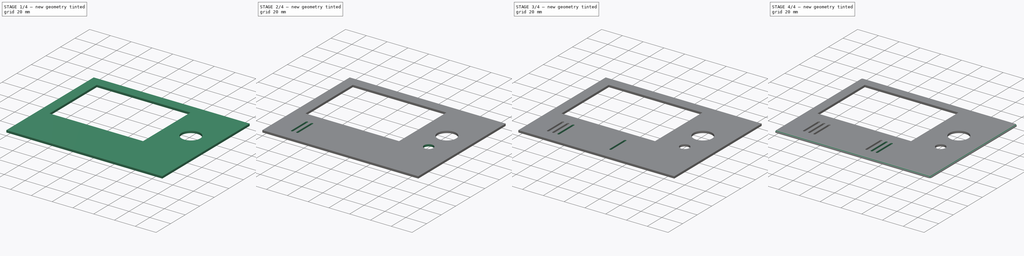
[diagram: build sequence overview — one tinted view per stage of 4, left to right]
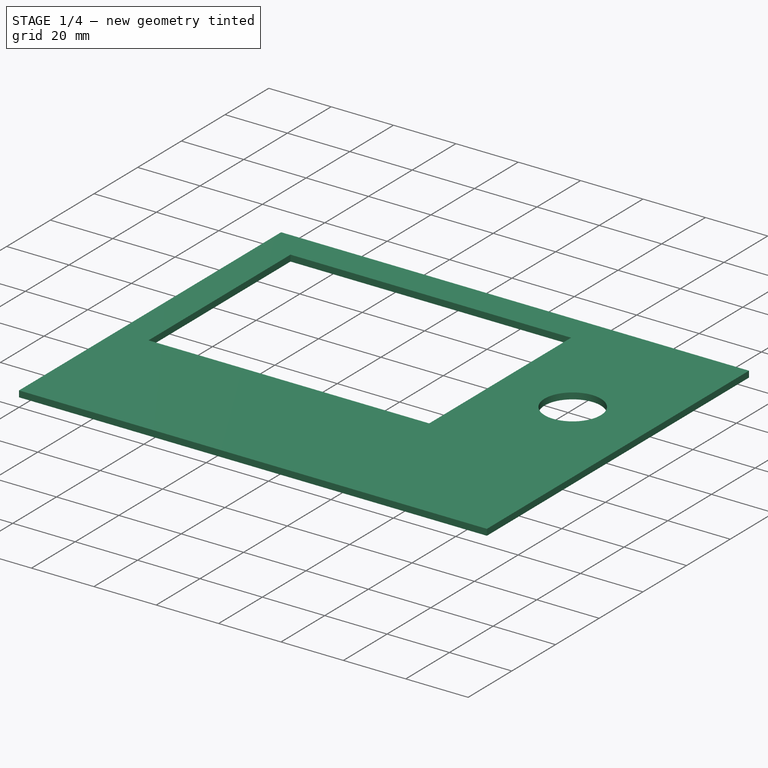
[diagram: stage 1 of 4 — iso view after this stage's code; geometry added in this stage tinted green]
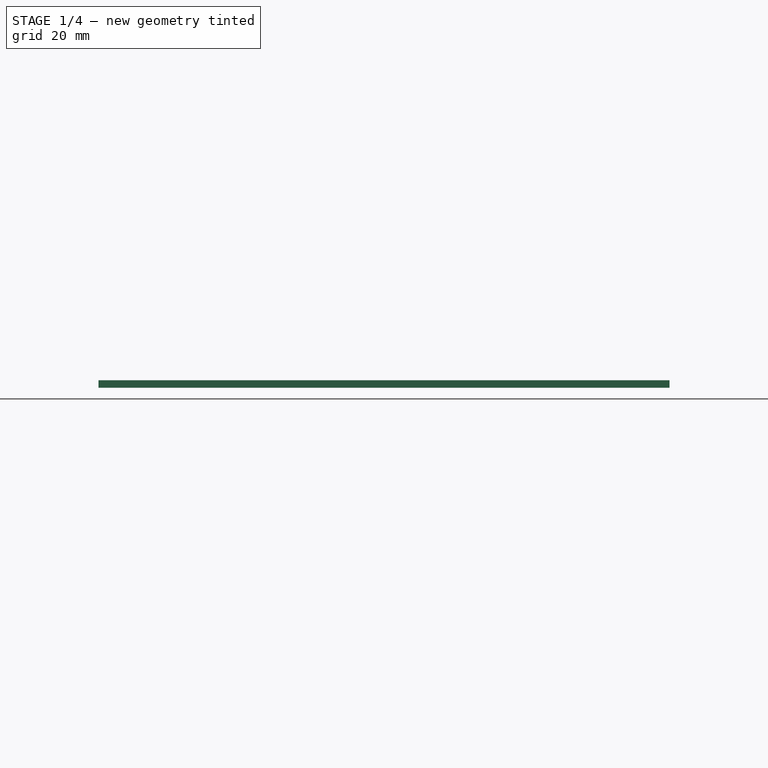
[diagram: stage 1 of 4 — front view after this stage's code; geometry added in this stage tinted green]
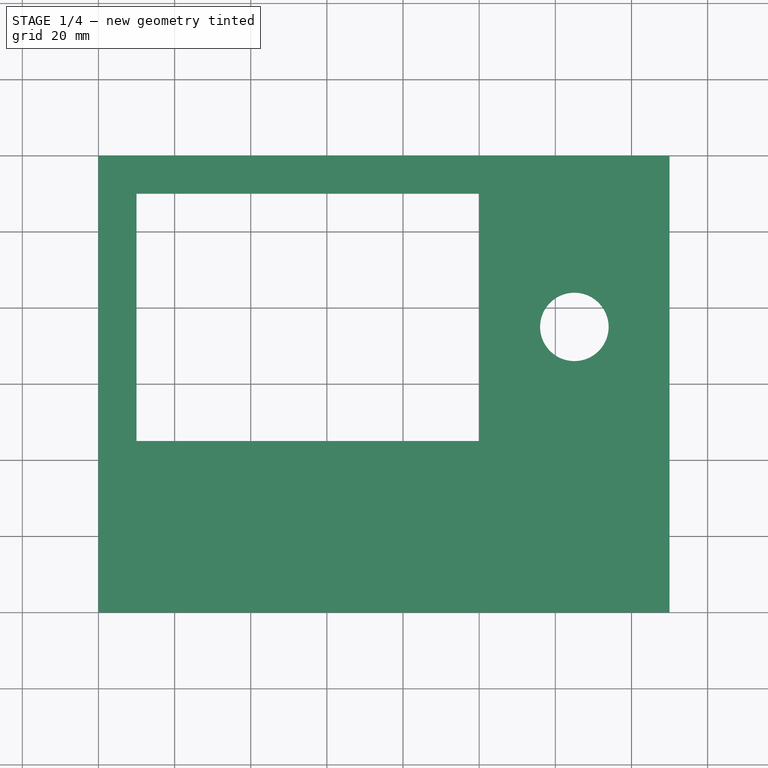
[diagram: stage 1 of 4 — top view after this stage's code; geometry added in this stage tinted green]
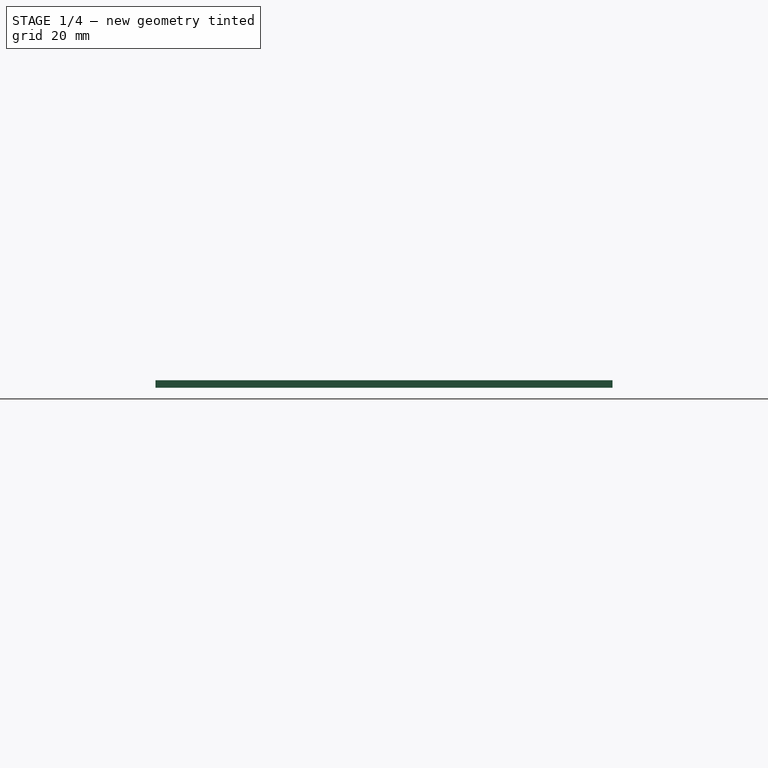
[diagram: stage 1 of 4 — right view after this stage's code; geometry added in this stage tinted green]
FCSTD DOCUMENT  (FreeCAD 1.0R38806 (Git))
Label: Front Panel
License: All rights reserved
LicenseURL: https://en.wikipedia.org/wiki/All_rights_reserved
objects: Sketcher::SketchObject×11, PartDesign::Pocket×9, PartDesign::Pad×1, PartDesign::Fillet×1, PartDesign::Body×1
note: 56 computed .brp shape members not serialized (recipe doc carries the construction recipe); baked Part::Feature solids carry a one-line shape summary decoded from their .brp

FEATURE [Sketcher::SketchObject] Sketch  label="Base"
  ArcFitTolerance = 0
  FullyConstrained = true
  MakeInternals = false
  MapMode = 5
  sketch-geometry (4):
    g0: LineSegment StartX=0 StartY=0 StartZ=0 EndX=150 EndY=0 EndZ=0
    g1: LineSegment StartX=150 StartY=0 StartZ=0 EndX=150 EndY=120 EndZ=0
    g2: LineSegment StartX=150 StartY=120 StartZ=0 EndX=0 EndY=120 EndZ=0
    g3: LineSegment StartX=0 StartY=120 StartZ=0 EndX=0 EndY=0 EndZ=0
  constraints (11):
    c: Coincident(g0,g1)
    c: Coincident(g1,g2)
    c: Coincident(g2,g3)
    c: Coincident(g3,g0)
    c: Horizontal(g0)
    c: Horizontal(g2)
    c: Vertical(g1)
    c: Vertical(g3)
    c: Coincident(g0,g-1)
    c: DistanceX(g2,g2) = 150  'width'
    c: DistanceY(g3,g3) = 120  'height'
FEATURE [Sketcher::SketchObject] Sketch001  label="Screen"
  ArcFitTolerance = 0
  ExternalGeometry = -> [Sketch]
  FullyConstrained = true
  MakeInternals = false
  MapMode = 5
  sketch-geometry (4):
    g0: LineSegment StartX=10 StartY=110 StartZ=0 EndX=10 EndY=45 EndZ=0
    g1: LineSegment StartX=10 StartY=45 StartZ=0 EndX=100 EndY=45 EndZ=0
    g2: LineSegment StartX=100 StartY=45 StartZ=0 EndX=100 EndY=110 EndZ=0
    g3: LineSegment StartX=100 StartY=110 StartZ=0 EndX=10 EndY=110 EndZ=0
  constraints (12):
    c: Coincident(g0,g1)
    c: Coincident(g1,g2)
    c: Coincident(g2,g3)
    c: Coincident(g3,g0)
    c: Vertical(g0)
    c: Vertical(g2)
    c: Horizontal(g1)
    c: Horizontal(g3)
    c: DistanceX(g3,g3) = 90  'screen_width'
    c: DistanceY(g2,g2) = 65  'screen_height'
    c: DistanceX(g-3,g0) = 10  'border_width'
    c: DistanceY(g0,g-3) = 10  'border_height'
FEATURE [Sketcher::SketchObject] Sketch002  label="BigButton"
  ArcFitTolerance = 0
  FullyConstrained = true
  MakeInternals = false
  MapMode = 5
  sketch-geometry (1):
    g0: Circle CenterX=125 CenterY=75 CenterZ=0 NormalX=0 NormalY=0 NormalZ=1 AngleXU=0 Radius=9
  constraints (3):
    c: Diameter(g0) = 18  'big_button'
    c: DistanceX(g-1,g0) = 125  'button_x'
    c: DistanceY(g-1,g0) = 75  'button_y'
FEATURE [Sketcher::SketchObject] Sketch003  label="SmallButton"
  ArcFitTolerance = 0
  FullyConstrained = true
  MakeInternals = false
  MapMode = 5
  expr: Constraints[1] = <<BigButton>>.Constraints.button_x
  sketch-geometry (1):
    g0: Circle CenterX=125 CenterY=50 CenterZ=0 NormalX=0 NormalY=0 NormalZ=1 AngleXU=0 Radius=4.5
  constraints (3):
    c: Diameter(g0) = 9  'small_button_diameter'
    c: DistanceX(g-1,g0) = 125
    c: DistanceY(g-1,g0) = 50  'small_button_y'
FEATURE [Sketcher::SketchObject] Sketch004  label="Grill1"
  ArcFitTolerance = 0
  FullyConstrained = true
  MakeInternals = false
  MapMode = 5
  sketch-geometry (4):
    g0: ArcOfCircle CenterX=20 CenterY=32.5 CenterZ=0 NormalX=0 NormalY=0 NormalZ=1 AngleXU=0 Radius=1 StartAngle=-1.8e-15 EndAngle=3.14159
    g1: ArcOfCircle CenterX=20 CenterY=12.5 CenterZ=0 NormalX=0 NormalY=0 NormalZ=1 AngleXU=0 Radius=1 StartAngle=3.14159 EndAngle=6.28319
    g2: LineSegment StartX=21 StartY=32.5 StartZ=0 EndX=21 EndY=12.5 EndZ=0
    g3: LineSegment StartX=19 StartY=32.5 StartZ=0 EndX=19 EndY=12.5 EndZ=0
  constraints (10):
    c: Tangent(g0,g2) = 1.5708
    c: Tangent(g0,g3) = -1.5708
    c: Tangent(g1,g2) = 1.5708
    c: Tangent(g1,g3) = -1.5708
    c: Equal(g0,g1)
    c: Vertical(g3)
    c: DistanceX(g0,g0) = 2  'grill_width'
    c: DistanceY(g1,g0) = 20  'grill_height'
    c: DistanceX(g-1,g1) = 20  'grill_x'
    c: Distance(g1,g-1) = 12.5  'grill_y'
FEATURE [Sketcher::SketchObject] Sketch006  label="Grill002"
  ArcFitTolerance = 0
  FullyConstrained = true
  MakeInternals = false
  MapMode = 5
  expr: .Constraints.grill_height = <<Grill1>>.Constraints.grill_height
  expr: .Constraints.grill_width = <<Grill1>>.Constraints.grill_width
  expr: .Constraints.grill_x = <<Grill1>>.Constraints.grill_x + <<Ruler>>.Constraints.grill_spacing
  expr: .Constraints.grill_y = <<Grill1>>.Constraints.grill_y
  sketch-geometry (4):
    g0: ArcOfCircle CenterX=25 CenterY=32.5 CenterZ=0 NormalX=0 NormalY=0 NormalZ=1 AngleXU=0 Radius=1 StartAngle=3.6e-15 EndAngle=3.14159
    g1: ArcOfCircle CenterX=25 CenterY=12.5 CenterZ=0 NormalX=0 NormalY=0 NormalZ=1 AngleXU=0 Radius=1 StartAngle=3.14159 EndAngle=6.28319
    g2: LineSegment StartX=26 StartY=32.5 StartZ=0 EndX=26 EndY=12.5 EndZ=0
    g3: LineSegment StartX=24 StartY=32.5 StartZ=0 EndX=24 EndY=12.5 EndZ=0
  constraints (10):
    c: Tangent(g0,g2) = 1.5708
    c: Tangent(g0,g3) = -1.5708
    c: Tangent(g1,g2) = 1.5708
    c: Tangent(g1,g3) = -1.5708
    c: Equal(g0,g1)
    c: Vertical(g3)
    c: DistanceX(g0,g0) = 2  'grill_width'
    c: DistanceY(g1,g0) = 20  'grill_height'
    c: DistanceX(g-1,g1) = 25  'grill_x'
    c: Distance(g1,g-1) = 12.5  'grill_y'
FEATURE [Sketcher::SketchObject] Sketch007  label="Ruler"
  ArcFitTolerance = 0
  FullyConstrained = true
  MakeInternals = false
  MapMode = 5
  sketch-geometry (3):
    g0: LineSegment StartX=-30 StartY=15 StartZ=0 EndX=-30 EndY=10 EndZ=0
    g1: LineSegment StartX=-60 StartY=0 StartZ=0 EndX=-60 EndY=60 EndZ=0
    g2: LineSegment StartX=-90 StartY=0 StartZ=0 EndX=-90 EndY=2 EndZ=0
  constraints (12):
    c: Vertical(g0)
    c: DistanceY(g0,g0) = 5  'grill_spacing'
    c: DistanceX(g0,g-1) = 30
    c: DistanceY(g0) = 10
    c: PointOnObject(g1,g-1)
    c: Vertical(g1)
    c: DistanceX(g1,g-1) = 60
    c: DistanceY(g1,g1) = 60  'big_grill_gap'
    c: PointOnObject(g2,g-1)
    c: Vertical(g2)
    c: DistanceX(g2,g-1) = 90
    c: DistanceY(g2,g2) = 2  'thickness'
FEATURE [Sketcher::SketchObject] Sketch008  label="Grill003"
  ArcFitTolerance = 0
  FullyConstrained = true
  MakeInternals = false
  MapMode = 5
  expr: .Constraints.grill_height = <<Grill1>>.Constraints.grill_height
  expr: .Constraints.grill_width = <<Grill1>>.Constraints.grill_width
  expr: .Constraints.grill_x = <<Grill1>>.Constraints.grill_x + 2 * <<Ruler>>.Constraints.grill_spacing
  expr: .Constraints.grill_y = <<Grill1>>.Constraints.grill_y
  sketch-geometry (4):
    g0: ArcOfCircle CenterX=30 CenterY=32.5 CenterZ=0 NormalX=0 NormalY=0 NormalZ=1 AngleXU=0 Radius=1 StartAngle=-2.7e-15 EndAngle=3.14159
    g1: ArcOfCircle CenterX=30 CenterY=12.5 CenterZ=0 NormalX=0 NormalY=0 NormalZ=1 AngleXU=0 Radius=1 StartAngle=3.14159 EndAngle=6.28319
    g2: LineSegment StartX=31 StartY=32.5 StartZ=0 EndX=31 EndY=12.5 EndZ=0
    g3: LineSegment StartX=29 StartY=32.5 StartZ=0 EndX=29 EndY=12.5 EndZ=0
  constraints (10):
    c: Tangent(g0,g2) = 1.5708
    c: Tangent(g0,g3) = -1.5708
    c: Tangent(g1,g2) = 1.5708
    c: Tangent(g1,g3) = -1.5708
    c: Equal(g0,g1)
    c: Vertical(g3)
    c: DistanceX(g0,g0) = 2  'grill_width'
    c: DistanceY(g1,g0) = 20  'grill_height'
    c: DistanceX(g-1,g1) = 30  'grill_x'
    c: Distance(g1,g-1) = 12.5  'grill_y'
FEATURE [Sketcher::SketchObject] Sketch009  label="Grill004"
  ArcFitTolerance = 0
  FullyConstrained = true
  MakeInternals = false
  MapMode = 5
  expr: .Constraints.grill_height = <<Grill1>>.Constraints.grill_height
  expr: .Constraints.grill_width = <<Grill1>>.Constraints.grill_width
  expr: .Constraints.grill_x = <<Grill1>>.Constraints.grill_x + <<Ruler>>.Constraints.big_grill_gap
  expr: .Constraints.grill_y = <<Grill1>>.Constraints.grill_y
  sketch-geometry (4):
    g0: ArcOfCircle CenterX=80 CenterY=32.5 CenterZ=0 NormalX=0 NormalY=0 NormalZ=1 AngleXU=0 Radius=1 StartAngle=1.5e-15 EndAngle=3.14159
    g1: ArcOfCircle CenterX=80 CenterY=12.5 CenterZ=0 NormalX=0 NormalY=0 NormalZ=1 AngleXU=0 Radius=1 StartAngle=3.14159 EndAngle=6.28319
    g2: LineSegment StartX=81 StartY=32.5 StartZ=0 EndX=81 EndY=12.5 EndZ=0
    g3: LineSegment StartX=79 StartY=32.5 StartZ=0 EndX=79 EndY=12.5 EndZ=0
  constraints (10):
    c: Tangent(g0,g2) = 1.5708
    c: Tangent(g0,g3) = -1.5708
    c: Tangent(g1,g2) = 1.5708
    c: Tangent(g1,g3) = -1.5708
    c: Equal(g0,g1)
    c: Vertical(g3)
    c: DistanceX(g0,g0) = 2  'grill_width'
    c: DistanceY(g1,g0) = 20  'grill_height'
    c: DistanceX(g-1,g1) = 80  'grill_x'
    c: Distance(g1,g-1) = 12.5  'grill_y'
FEATURE [Sketcher::SketchObject] Sketch010  label="Grill005"
  ArcFitTolerance = 0
  FullyConstrained = true
  MakeInternals = false
  MapMode = 5
  expr: .Constraints.grill_height = <<Grill1>>.Constraints.grill_height
  expr: .Constraints.grill_width = <<Grill1>>.Constraints.grill_width
  expr: .Constraints.grill_x = <<Grill1>>.Constraints.grill_x + <<Ruler>>.Constraints.big_grill_gap + <<Ruler>>.Constraints.grill_spacing
  expr: .Constraints.grill_y = <<Grill1>>.Constraints.grill_y
  sketch-geometry (4):
    g0: ArcOfCircle CenterX=85 CenterY=32.5 CenterZ=0 NormalX=0 NormalY=0 NormalZ=1 AngleXU=0 Radius=1 StartAngle=2.9e-15 EndAngle=3.14159
    g1: ArcOfCircle CenterX=85 CenterY=12.5 CenterZ=0 NormalX=0 NormalY=0 NormalZ=1 AngleXU=0 Radius=1 StartAngle=3.14159 EndAngle=6.28319
    g2: LineSegment StartX=86 StartY=32.5 StartZ=0 EndX=86 EndY=12.5 EndZ=0
    g3: LineSegment StartX=84 StartY=32.5 StartZ=0 EndX=84 EndY=12.5 EndZ=0
  constraints (10):
    c: Tangent(g0,g2) = 1.5708
    c: Tangent(g0,g3) = -1.5708
    c: Tangent(g1,g2) = 1.5708
    c: Tangent(g1,g3) = -1.5708
    c: Equal(g0,g1)
    c: Vertical(g3)
    c: DistanceX(g0,g0) = 2  'grill_width'
    c: DistanceY(g1,g0) = 20  'grill_height'
    c: DistanceX(g-1,g1) = 85  'grill_x'
    c: Distance(g1,g-1) = 12.5  'grill_y'
FEATURE [Sketcher::SketchObject] Sketch011  label="Grill006"
  ArcFitTolerance = 0
  FullyConstrained = true
  MakeInternals = false
  MapMode = 5
  expr: .Constraints.grill_height = <<Grill1>>.Constraints.grill_height
  expr: .Constraints.grill_width = <<Grill1>>.Constraints.grill_width
  expr: .Constraints.grill_x = <<Grill1>>.Constraints.grill_x + <<Ruler>>.Constraints.big_grill_gap + 2 * <<Ruler>>.Constraints.grill_spacing
  expr: .Constraints.grill_y = <<Grill1>>.Constraints.grill_y
  sketch-geometry (4):
    g0: ArcOfCircle CenterX=90 CenterY=32.5 CenterZ=0 NormalX=0 NormalY=0 NormalZ=1 AngleXU=0 Radius=1 StartAngle=-3.6e-15 EndAngle=3.14159
    g1: ArcOfCircle CenterX=90 CenterY=12.5 CenterZ=0 NormalX=0 NormalY=0 NormalZ=1 AngleXU=0 Radius=1 StartAngle=3.14159 EndAngle=6.28319
    g2: LineSegment StartX=91 StartY=32.5 StartZ=0 EndX=91 EndY=12.5 EndZ=0
    g3: LineSegment StartX=89 StartY=32.5 StartZ=0 EndX=89 EndY=12.5 EndZ=0
  constraints (10):
    c: Tangent(g0,g2) = 1.5708
    c: Tangent(g0,g3) = -1.5708
    c: Tangent(g1,g2) = 1.5708
    c: Tangent(g1,g3) = -1.5708
    c: Equal(g0,g1)
    c: Vertical(g3)
    c: DistanceX(g0,g0) = 2  'grill_width'
    c: DistanceY(g1,g0) = 20  'grill_height'
    c: DistanceX(g-1,g1) = 90  'grill_x'
    c: Distance(g1,g-1) = 12.5  'grill_y'
FEATURE [PartDesign::Pad] Pad
  Direction = (0,0,1)
  Length = 2
  Length2 = 10
  Profile = -> Sketch
  ReferenceAxis = -> Sketch [N_Axis]
  Refine = true
  Suppressed = false
  Type = 0
  expr: Length = <<Ruler>>.Constraints.thickness
FEATURE [PartDesign::Pocket] Pocket
  BaseFeature = -> Pad
  Direction = (0,0,-1)
  Length = 2
  Length2 = 5
  Profile = -> Sketch001
  ReferenceAxis = -> Sketch001 [N_Axis]
  Refine = true
  Reversed = true
  Suppressed = false
  Type = 0
  expr: Length = <<Ruler>>.Constraints.thickness
FEATURE [PartDesign::Pocket] Pocket001
  BaseFeature = -> Pocket
  Direction = (0,0,-1)
  Length = 2
  Length2 = 5
  Profile = -> Sketch002
  ReferenceAxis = -> Sketch002 [N_Axis]
  Refine = true
  Reversed = true
  Suppressed = false
  Type = 0
  expr: Length = <<Ruler>>.Constraints.thickness
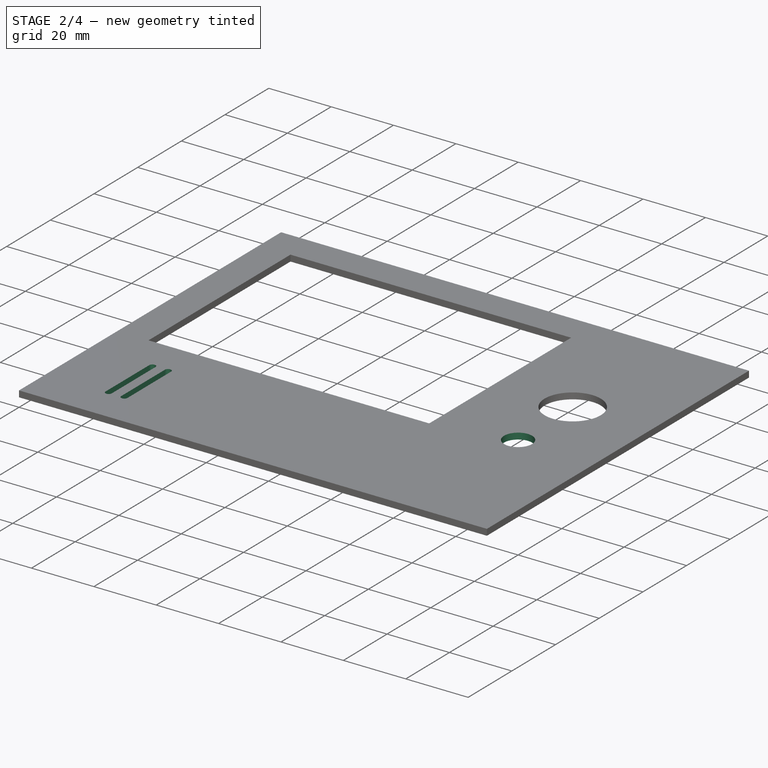
[diagram: stage 2 of 4 — iso view after this stage's code; geometry added in this stage tinted green]
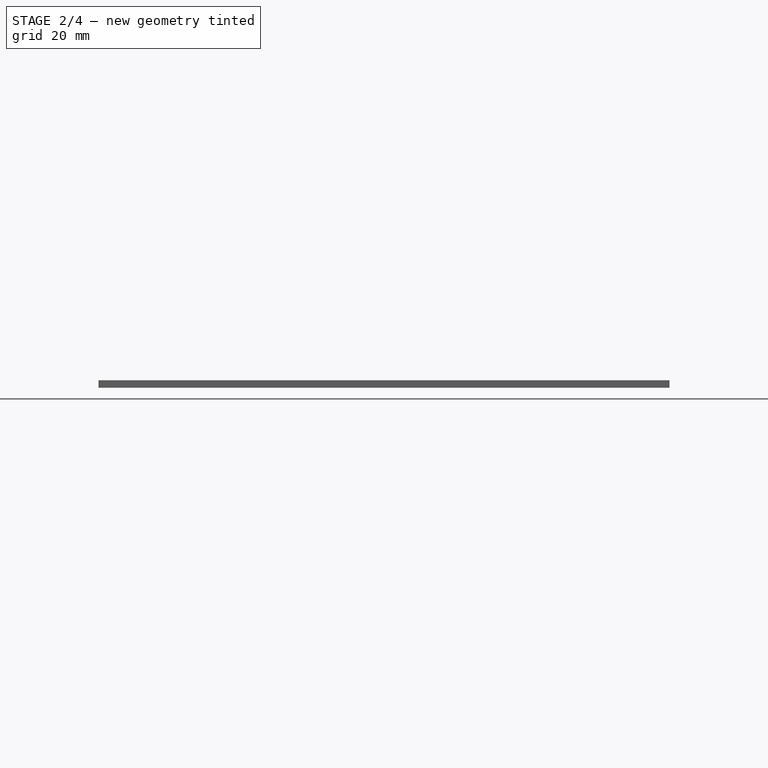
[diagram: stage 2 of 4 — front view after this stage's code; geometry added in this stage tinted green]
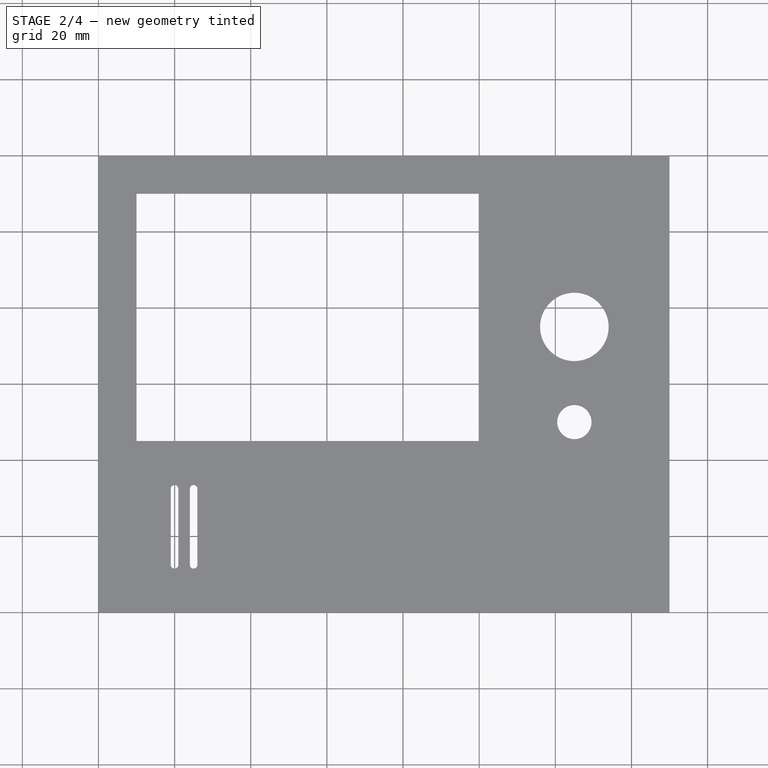
[diagram: stage 2 of 4 — top view after this stage's code; geometry added in this stage tinted green]
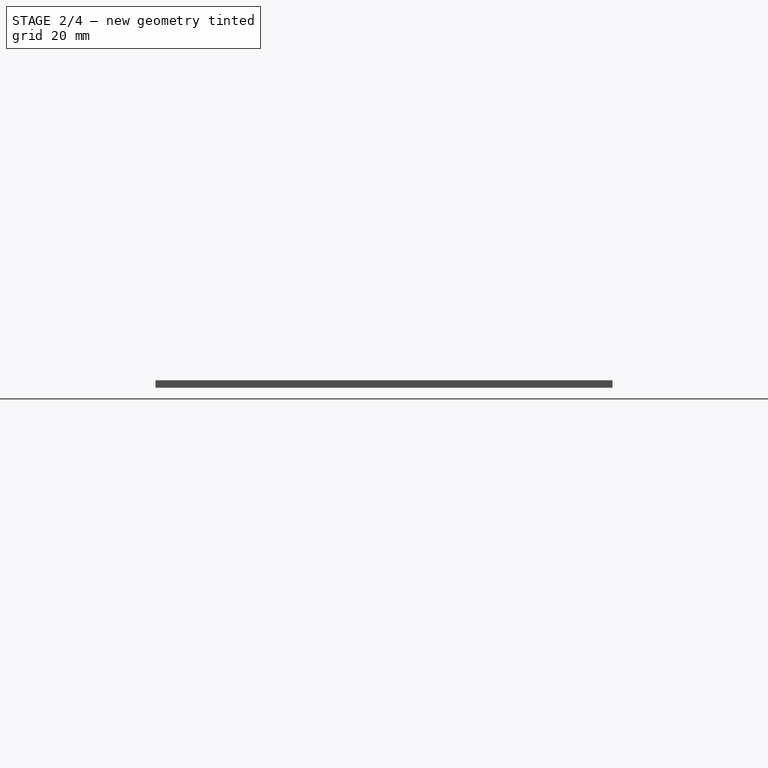
[diagram: stage 2 of 4 — right view after this stage's code; geometry added in this stage tinted green]
FEATURE [PartDesign::Pocket] Pocket002
  BaseFeature = -> Pocket001
  Direction = (0,0,-1)
  Length = 2
  Length2 = 5
  Profile = -> Sketch003
  ReferenceAxis = -> Sketch003 [N_Axis]
  Refine = true
  Reversed = true
  Suppressed = false
  Type = 0
  expr: Length = <<Ruler>>.Constraints.thickness
FEATURE [PartDesign::Pocket] Pocket003
  BaseFeature = -> Pocket002
  Direction = (0,0,-1)
  Length = 2
  Length2 = 5
  Profile = -> Sketch004
  ReferenceAxis = -> Sketch004 [N_Axis]
  Refine = true
  Reversed = true
  Suppressed = false
  Type = 0
  expr: Length = <<Ruler>>.Constraints.thickness
FEATURE [PartDesign::Pocket] Pocket004
  BaseFeature = -> Pocket003
  Direction = (0,0,-1)
  Length = 2
  Length2 = 5
  Profile = -> Sketch006
  ReferenceAxis = -> Sketch006 [N_Axis]
  Refine = true
  Reversed = true
  Suppressed = false
  Type = 0
  expr: Length = <<Ruler>>.Constraints.thickness
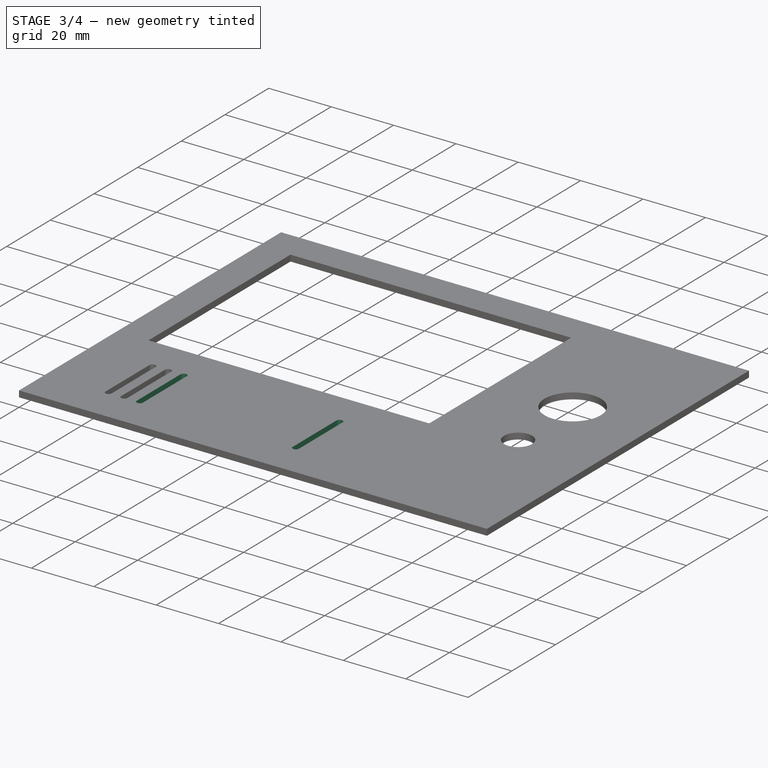
[diagram: stage 3 of 4 — iso view after this stage's code; geometry added in this stage tinted green]
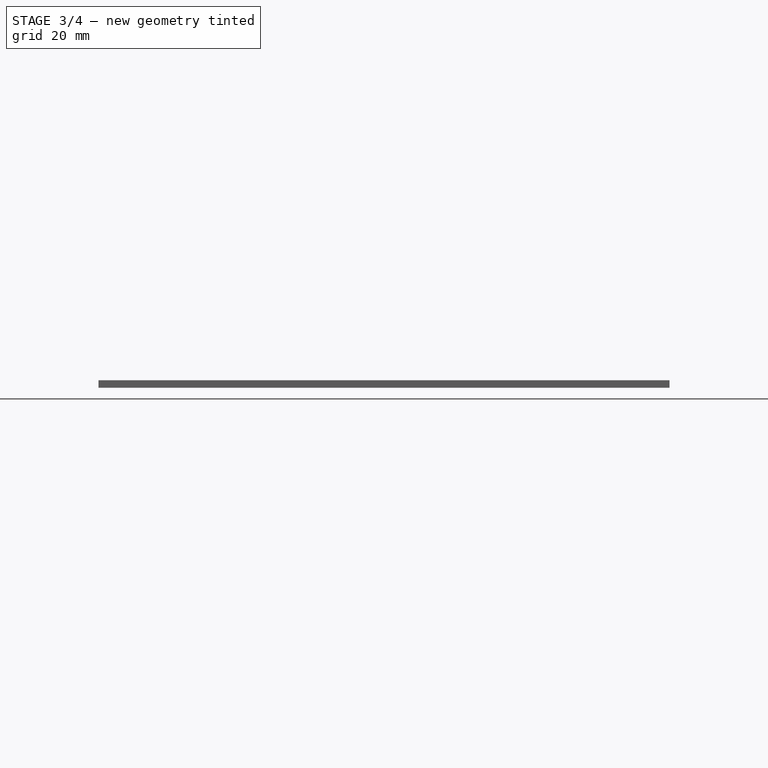
[diagram: stage 3 of 4 — front view after this stage's code; geometry added in this stage tinted green]
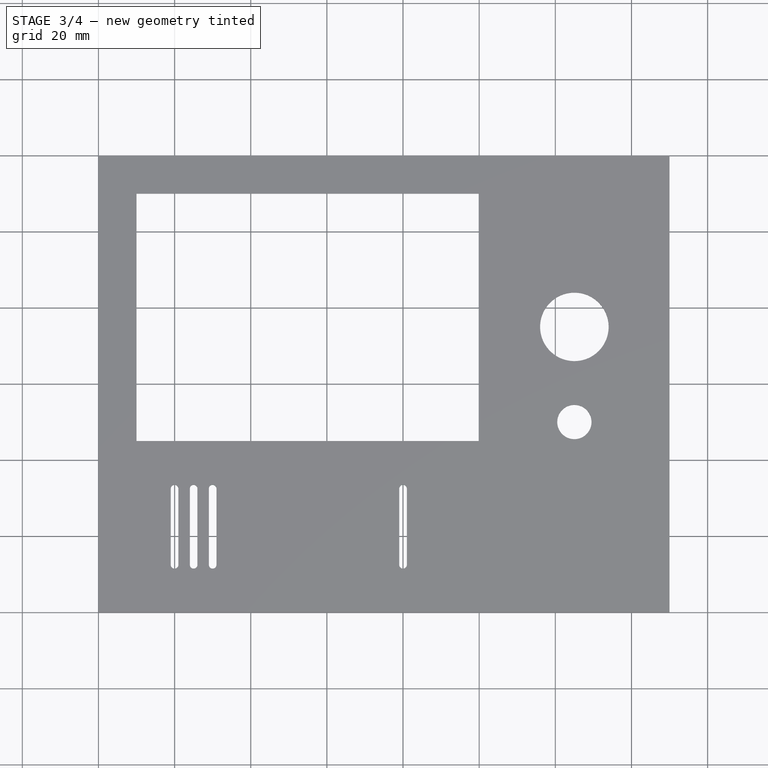
[diagram: stage 3 of 4 — top view after this stage's code; geometry added in this stage tinted green]
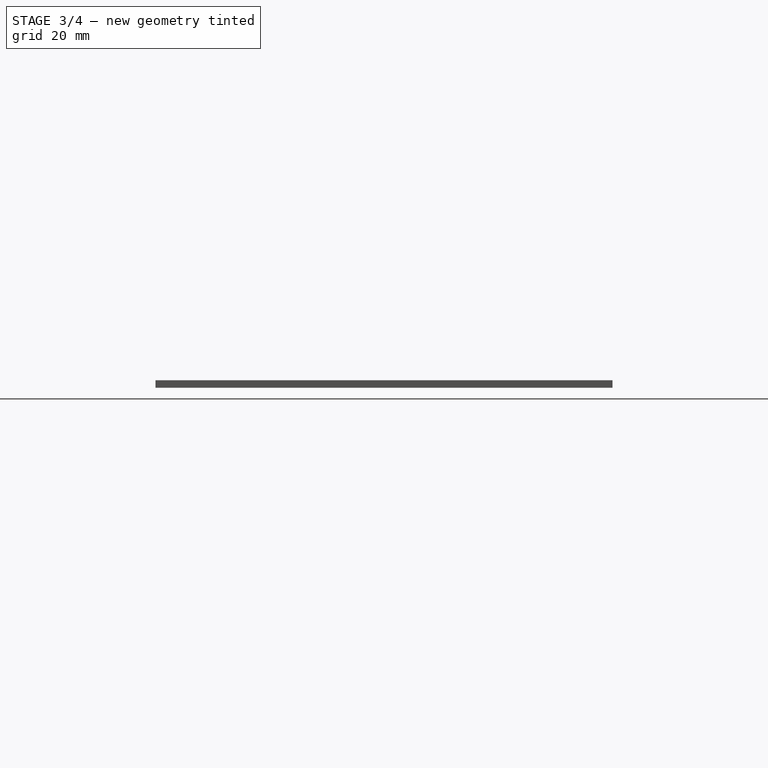
[diagram: stage 3 of 4 — right view after this stage's code; geometry added in this stage tinted green]
FEATURE [PartDesign::Pocket] Pocket005
  BaseFeature = -> Pocket004
  Direction = (0,0,-1)
  Length = 2
  Length2 = 5
  Profile = -> Sketch008
  ReferenceAxis = -> Sketch008 [N_Axis]
  Refine = true
  Reversed = true
  Suppressed = false
  Type = 0
  expr: Length = <<Ruler>>.Constraints.thickness
FEATURE [PartDesign::Pocket] Pocket006
  BaseFeature = -> Pocket005
  Direction = (0,0,-1)
  Length = 2
  Length2 = 5
  Profile = -> Sketch009
  ReferenceAxis = -> Sketch009 [N_Axis]
  Refine = true
  Reversed = true
  Suppressed = false
  Type = 0
  expr: Length = <<Ruler>>.Constraints.thickness
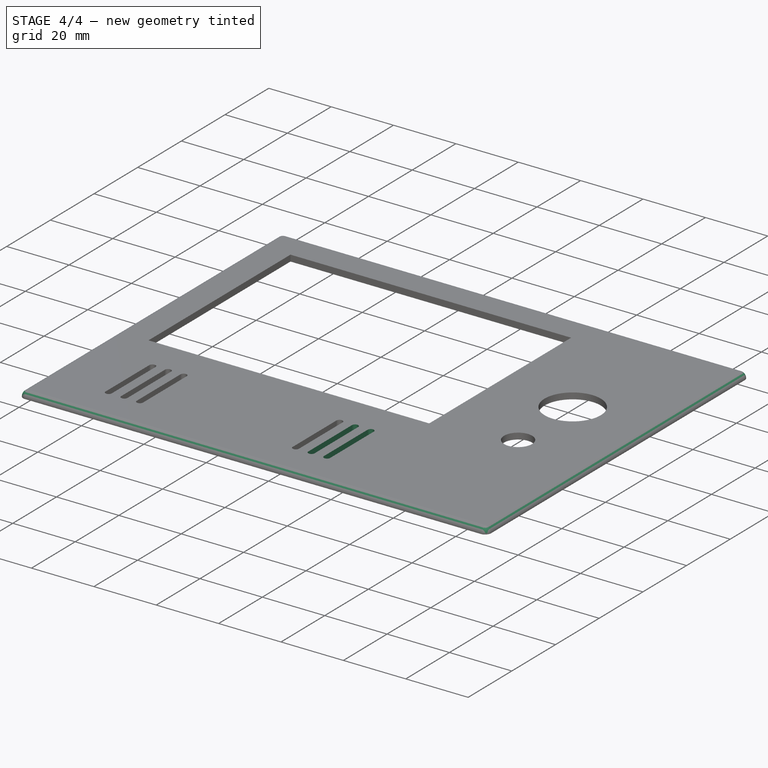
[diagram: stage 4 of 4 — iso view after this stage's code; geometry added in this stage tinted green]
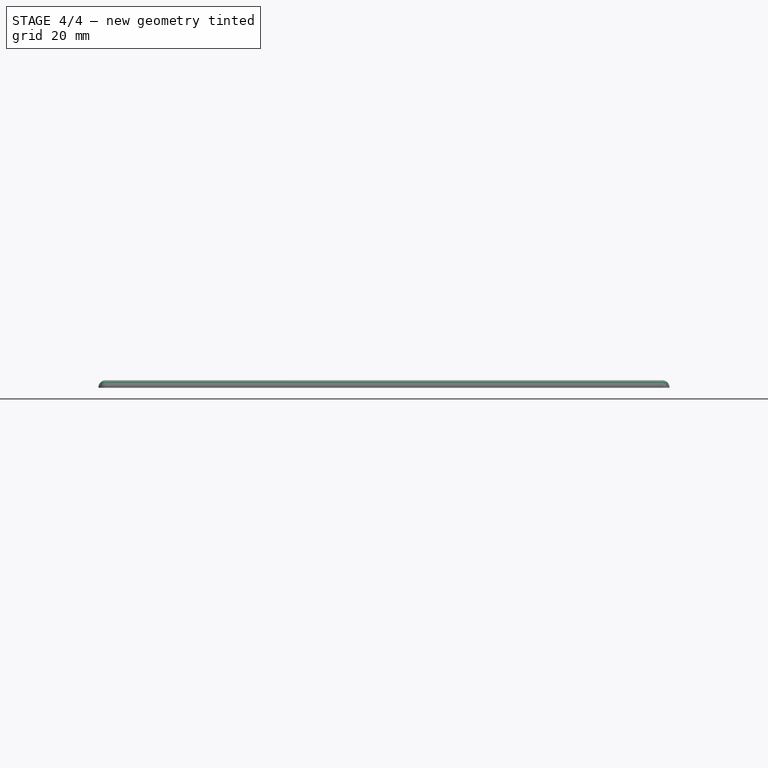
[diagram: stage 4 of 4 — front view after this stage's code; geometry added in this stage tinted green]
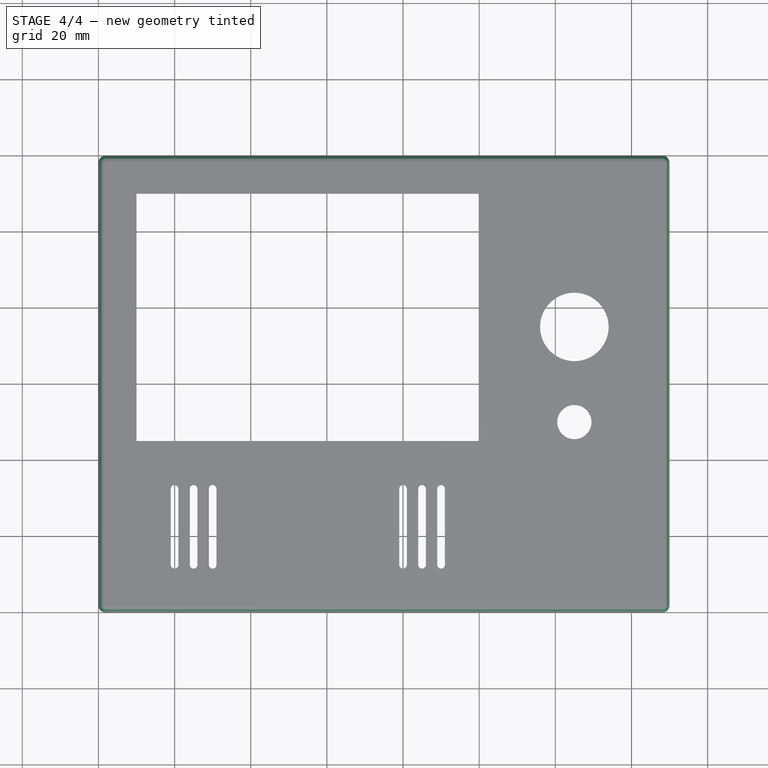
[diagram: stage 4 of 4 — top view after this stage's code; geometry added in this stage tinted green]
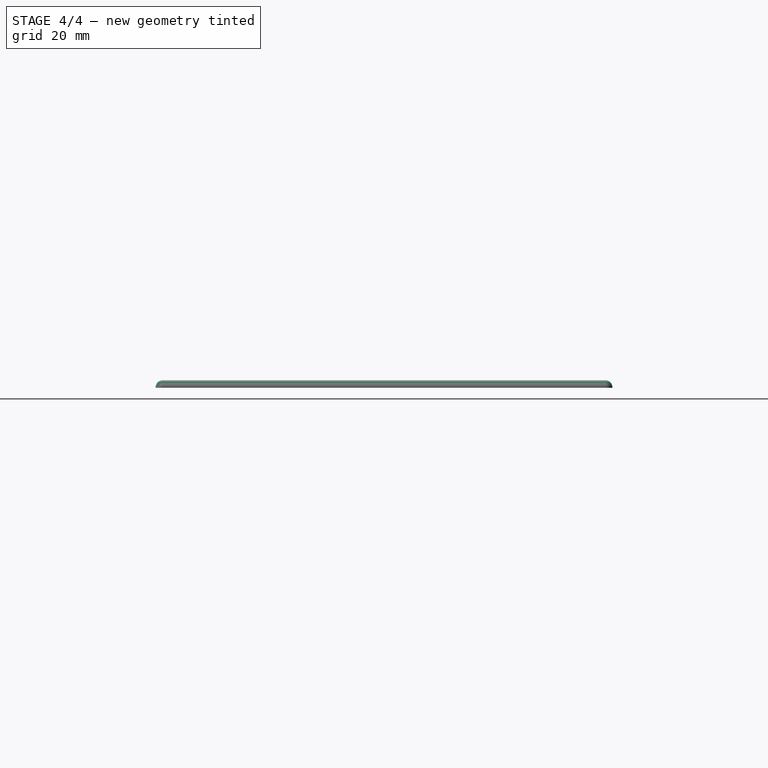
[diagram: stage 4 of 4 — right view after this stage's code; geometry added in this stage tinted green]
FEATURE [PartDesign::Pocket] Pocket007
  BaseFeature = -> Pocket006
  Direction = (0,0,-1)
  Length = 2
  Length2 = 5
  Profile = -> Sketch010
  ReferenceAxis = -> Sketch010 [N_Axis]
  Refine = true
  Reversed = true
  Suppressed = false
  Type = 0
  expr: Length = <<Ruler>>.Constraints.thickness
FEATURE [PartDesign::Pocket] Pocket008
  BaseFeature = -> Pocket007
  Direction = (0,0,-1)
  Length = 2
  Length2 = 5
  Profile = -> Sketch011
  ReferenceAxis = -> Sketch011 [N_Axis]
  Refine = true
  Reversed = true
  Suppressed = false
  Type = 0
  expr: Length = <<Ruler>>.Constraints.thickness
FEATURE [PartDesign::Fillet] Fillet
  Base = -> Pocket008 [Edge7,Edge4,Edge1,Edge5,Edge42,Edge10,Edge2,Edge8]
  BaseFeature = -> Pocket008
  Radius = 1.9
  Refine = true
  SupportTransform = false
  Suppressed = false
  UseAllEdges = false
FEATURE [PartDesign::Body] Body
  AllowCompound = false
  Group = -> [Sketch,Sketch001,Sketch002,Sketch003,Sketch004,Sketch006,Sketch007,Sketch008,Sketch009,Sketch010,Sketch011,Pad,Pocket,Pocket001,Pocket002,Pocket003,Pocket004,Pocket005,Pocket006,Pocket007,Pocket008,Fillet]
  Origin = -> Origin
  Tip = -> Fillet
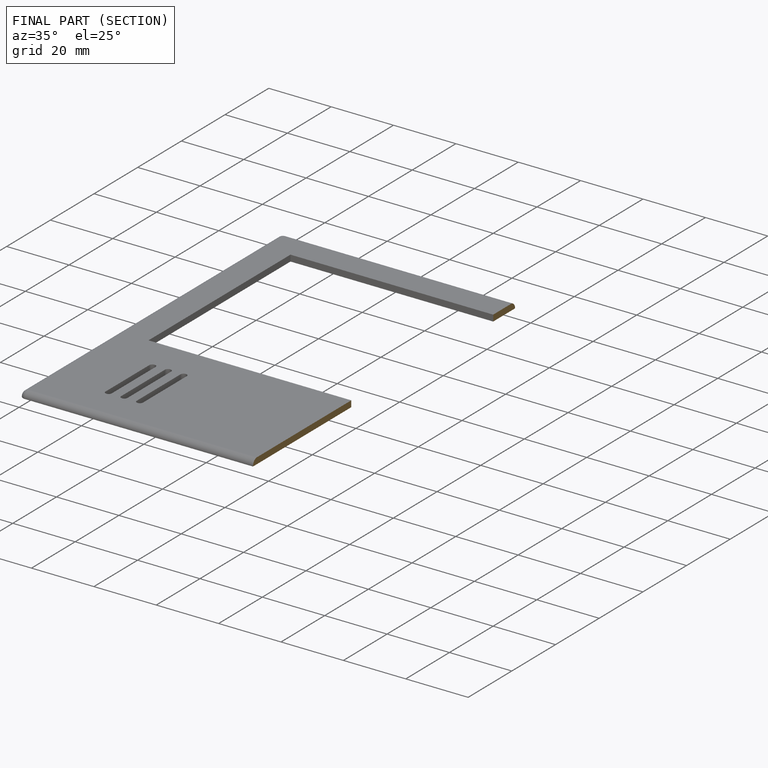
[diagram: finished part — half-section view (interior)]
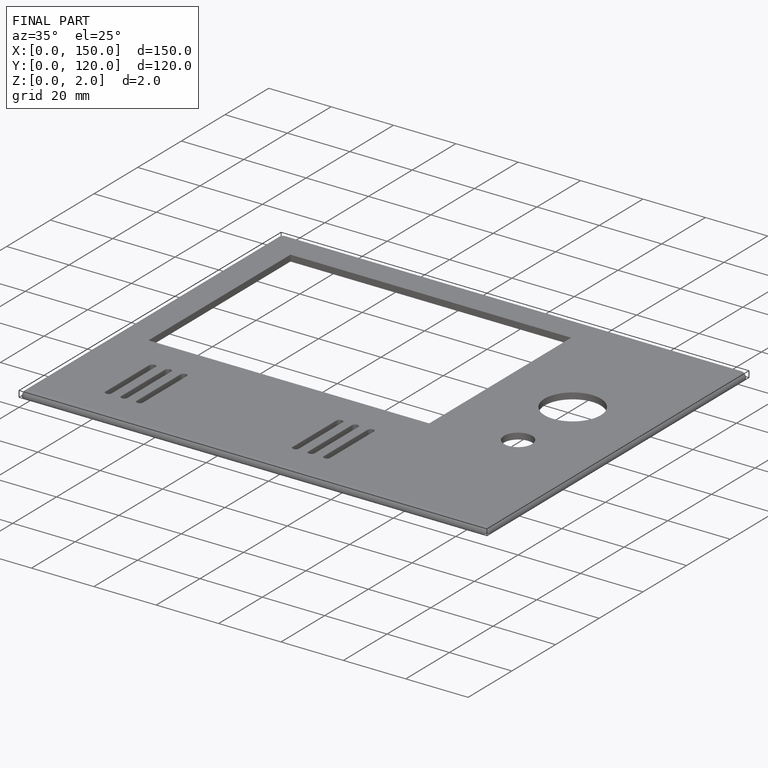
[diagram: finished part — iso view with bounding-box wireframe]
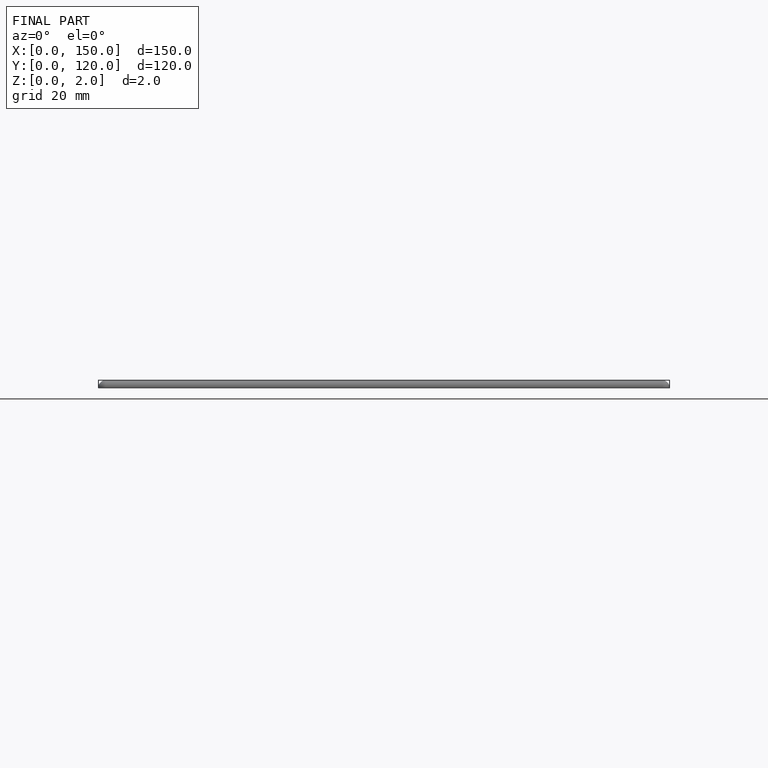
[diagram: finished part — front view with bounding-box wireframe]
